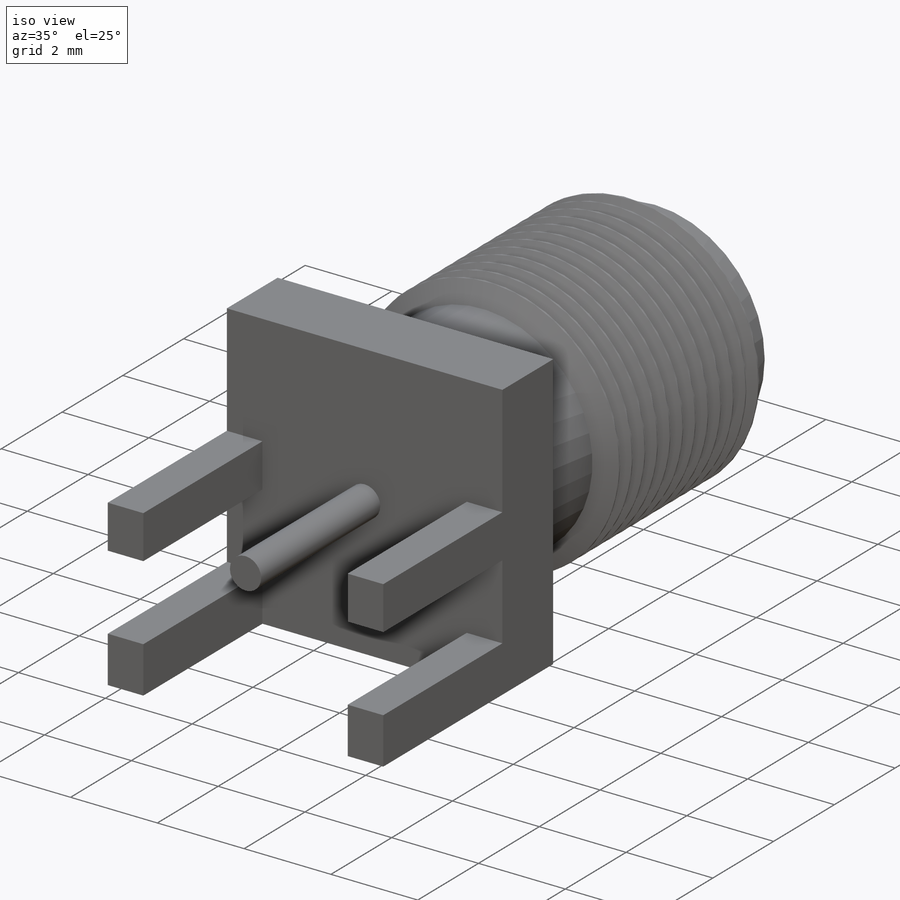
[diagram: iso view]
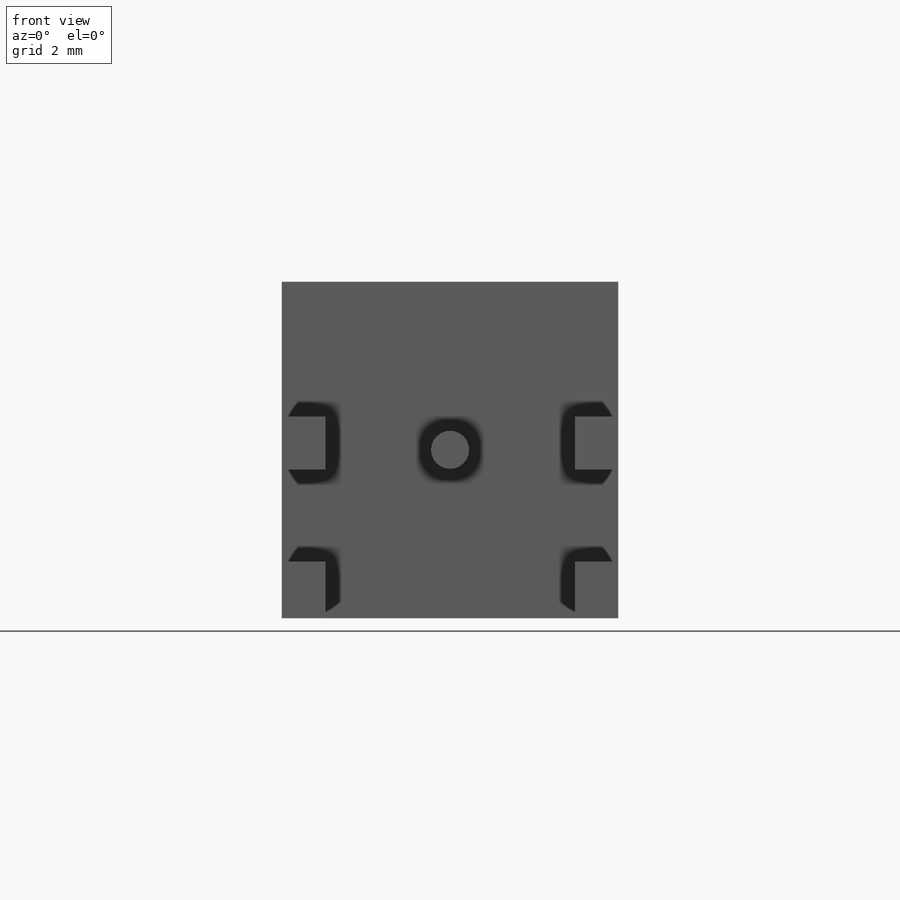
[diagram: front view]
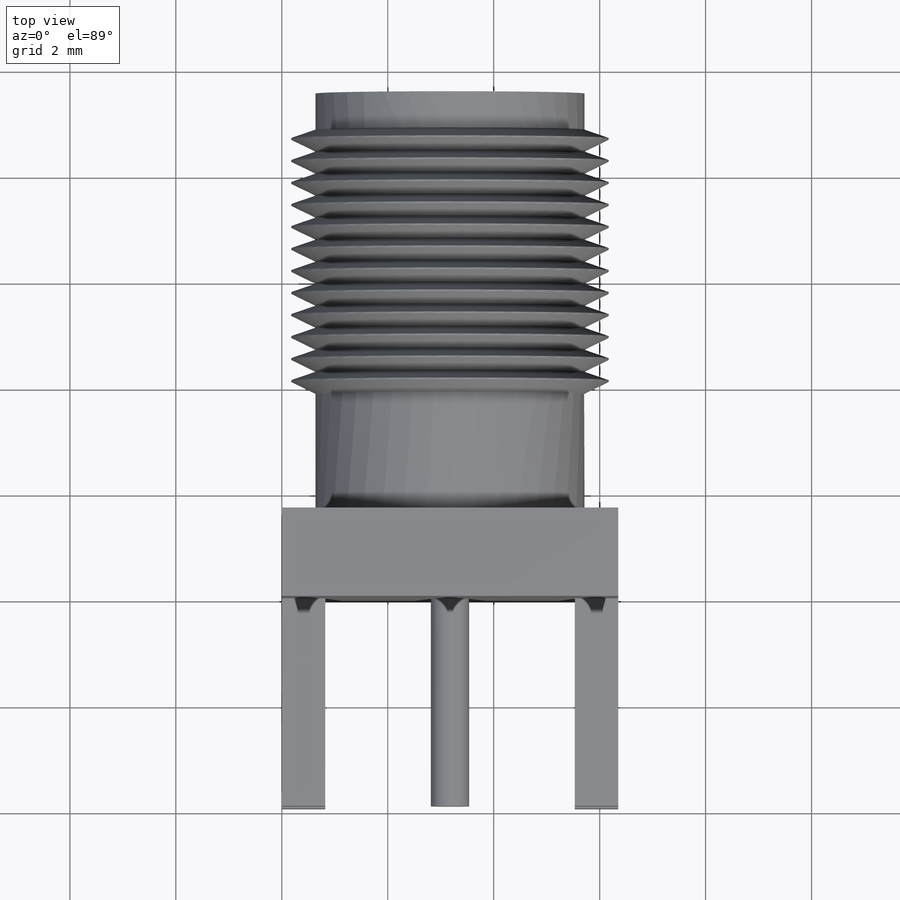
[diagram: top view]
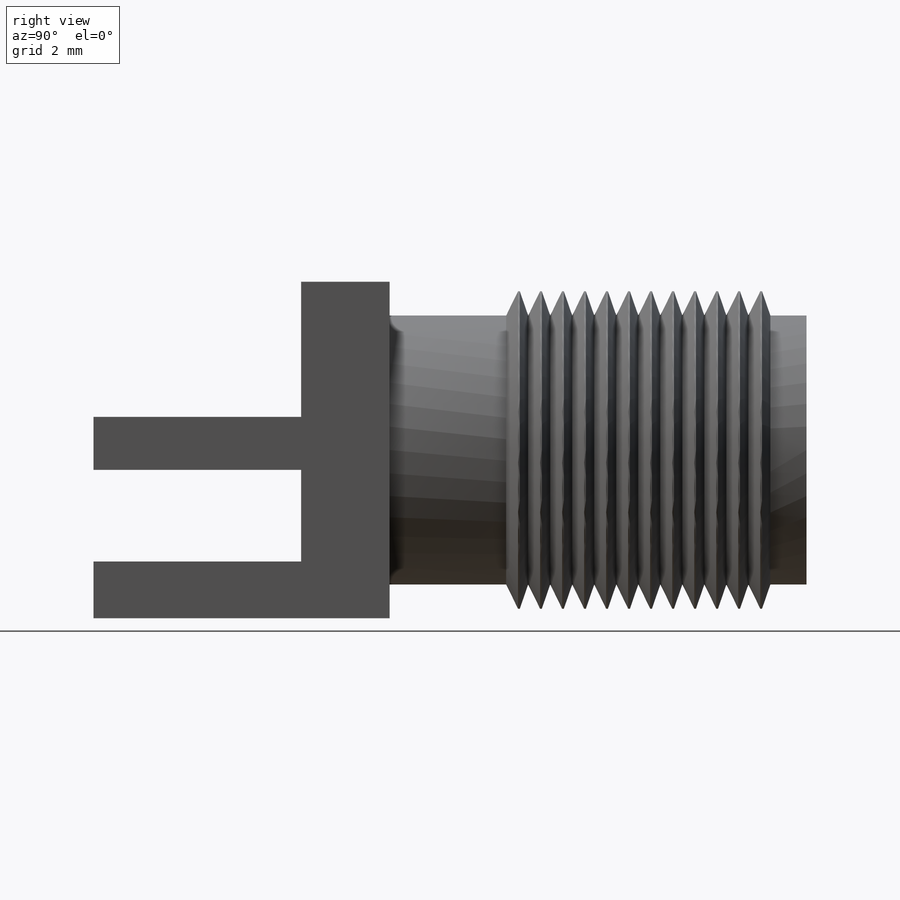
[diagram: right view]
SOLIDWORKS PART (.sldprt)
format: sldprt  version: not decoded by parser v0  size: 338,944 bytes
history: native  units: mm
features: sketch x7, extrude x5, material x1, plane x1, cut_extrude x1, cut_revolve x1 (+12 scaffold rows collapsed)
feature tree (28):
  scaffold x12  (default folders/planes/origin — collapsed)
  material  "Material <not specified>"
  sketch  "Sketch1"  dims[D1=6.35mm]
  extrude  "Boss-Extrude1"  Depth=6.35mm
  sketch  "Sketch2"  dims[D1=1.0mm]
  extrude  "Boss-Extrude2"  Depth=3.92mm
  sketch  "Sketch3"  dims[D1=~0.961929mm]
  extrude  "Boss-Extrude3"  Depth=7.5mm
  sketch  "Sketch4"  dims[D1=3.115mm]
  extrude  "Boss-Extrude4"  Depth=7.87mm
  plane  "Plane1"
  sketch  "Sketch7"
  sketch  "Sketch5"  dims[D1=~1.669366mm]
  cut_extrude  "Cut-Extrude1"  Depth=2.16mm
  sketch  "Sketch6"
  extrude  "Boss-Extrude5"  Depth=11.43mm
  cut_revolve  "Cut-Revolve1"  Angle=360deg
decode coverage: 12 of 14 modeling features carry decoded parameters
note: ~ marks probable driven/reference dimensions
note: suppression state not decoded; provenance and decode notes live in map.json
